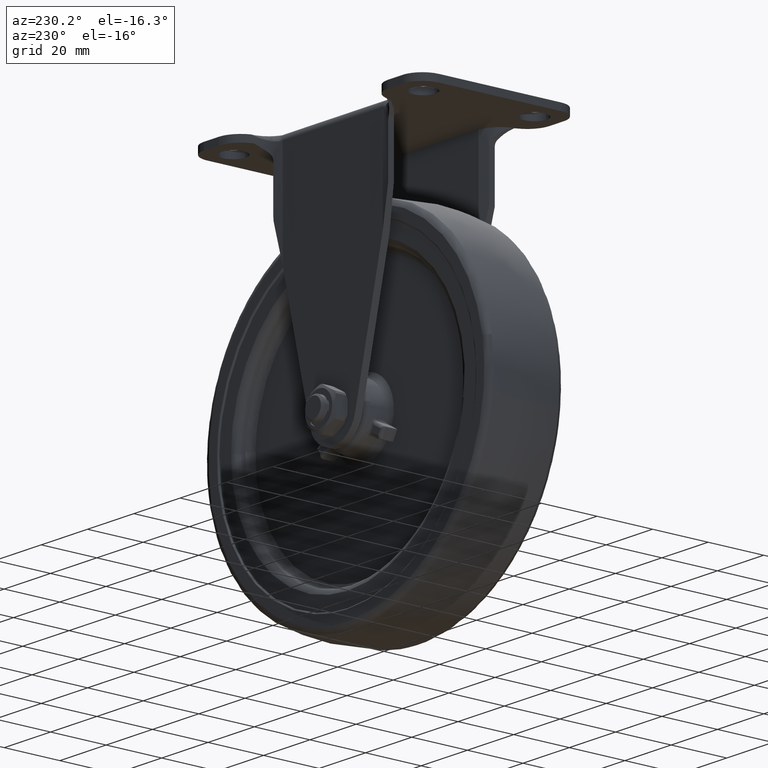
[diagram: clean part render]
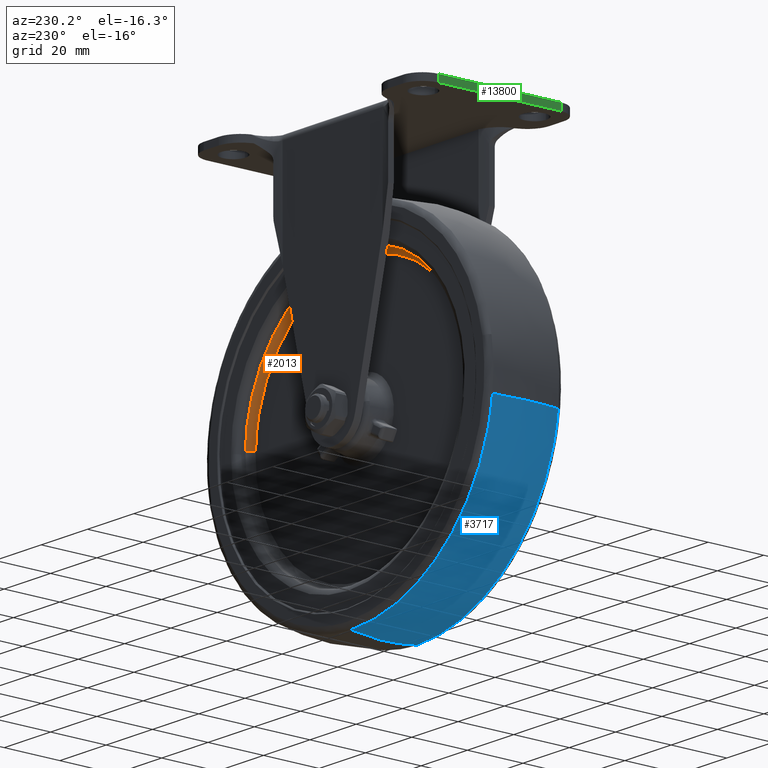
[diagram: same view with three faces highlighted in distinct colors, each labeled with its STEP entity id]
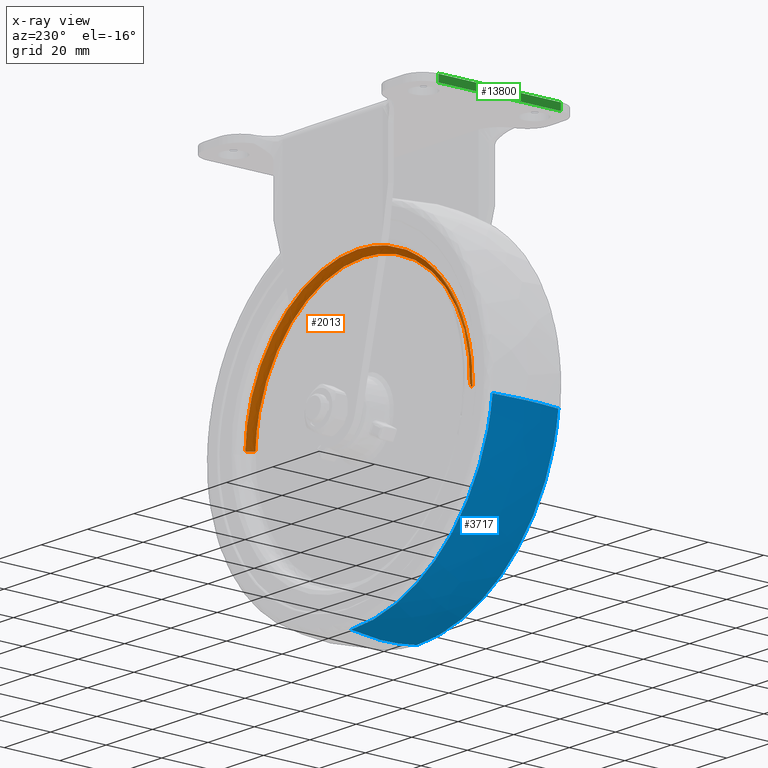
[diagram: x-ray of the same camera — body ghosted, the three highlighted faces saturated]
A machine part, auxiliary view with three faces highlighted in distinct colors.
The next image is the same camera in x-ray (body ghosted, the three faces saturated) — at least one of them is partly hidden behind the body in this view.
Their STEP definitions:

[orange] entity #2013 — the highlighted face is a freeform B-spline surface patch.
#70=CARTESIAN_POINT('',(-15.515367392135820,9.499999999514031,-41.065084761805139));
#71=VERTEX_POINT('',#70);
#72=CARTESIAN_POINT('',(9.484683180239662,9.499999996274280,-82.281190370982941));
#73=VERTEX_POINT('',#72);
#74=CARTESIAN_POINT('',(-15.515367392135818,9.499999999514031,-41.065084761805139));
#75=CARTESIAN_POINT('',(8.786683125110823,9.499999998462274,-54.514498406477614));
#76=CARTESIAN_POINT('',(9.484683180239662,9.499999996274280,-82.281190370982941));
#84=(BOUNDED_CURVE()B_SPLINE_CURVE(2,(#74,#75,#76),.UNSPECIFIED.,.F.,.U.)B_SPLINE_CURVE_WITH_KNOTS((3,3),(0.082484200464567,0.245579891769698),.UNSPECIFIED.)CURVE()GEOMETRIC_REPRESENTATION_ITEM()RATIONAL_B_SPLINE_CURVE((0.870495207989190,0.805504370457145,0.989826157681328))REPRESENTATION_ITEM(''));
#85=EDGE_CURVE('',#71,#73,#84,.T.);
#156=CARTESIAN_POINT('',(-74.757954433045185,9.500000000000950,-50.733878856901072));
#157=VERTEX_POINT('',#156);
#163=CARTESIAN_POINT('',(-87.484683180239671,9.499999996274280,-84.718809629017045));
#164=VERTEX_POINT('',#163);
#165=CARTESIAN_POINT('',(-87.484683180239671,9.499999996274280,-84.718809629017045));
#166=CARTESIAN_POINT('',(-87.499999999999986,9.500000000000000,-84.109501057999069));
#167=CARTESIAN_POINT('',(-87.500000000000000,9.500000000000000,-83.500000000000000));
#168=CARTESIAN_POINT('',(-87.500000000000000,9.499999999999998,-64.639384570472657));
#169=CARTESIAN_POINT('',(-74.757954433045185,9.500000000000950,-50.733878856901079));
#177=(BOUNDED_CURVE()B_SPLINE_CURVE(2,(#165,#166,#167,#168,#169),.UNSPECIFIED.,.F.,.U.)B_SPLINE_CURVE_WITH_KNOTS((3,2,3),(0.745579891769698,0.750000000000000,0.868415192508486),.UNSPECIFIED.)CURVE()GEOMETRIC_REPRESENTATION_ITEM()RATIONAL_B_SPLINE_CURVE((0.989826157681329,0.994821521091692,1.0,0.861267972439100,0.853959782883932))REPRESENTATION_ITEM(''));
#178=EDGE_CURVE('',#164,#157,#177,.T.);
#227=CARTESIAN_POINT('',(-39.0,9.500000000000000,-35.0));
#228=VERTEX_POINT('',#227);
#229=CARTESIAN_POINT('',(-39.0,9.500000000000000,-35.0));
#230=CARTESIAN_POINT('',(-26.474506590807646,9.500000000000000,-34.999999999999993));
#231=CARTESIAN_POINT('',(-15.515367392135818,9.499999999514031,-41.065084761805139));
#239=(BOUNDED_CURVE()B_SPLINE_CURVE(2,(#229,#230,#231),.UNSPECIFIED.,.F.,.U.)B_SPLINE_CURVE_WITH_KNOTS((3,3),(0.0,0.082484200464567),.UNSPECIFIED.)CURVE()GEOMETRIC_REPRESENTATION_ITEM()RATIONAL_B_SPLINE_CURVE((1.0,0.903363748098715,0.870495207989190))REPRESENTATION_ITEM(''));
#240=EDGE_CURVE('',#228,#71,#239,.T.);
#242=CARTESIAN_POINT('',(-74.757954433045185,9.500000000000950,-50.733878856901079));
#243=CARTESIAN_POINT('',(-60.340513926447827,9.499999999999998,-35.0));
#244=CARTESIAN_POINT('',(-39.0,9.500000000000000,-35.0));
#252=(BOUNDED_CURVE()B_SPLINE_CURVE(2,(#242,#243,#244),.UNSPECIFIED.,.F.,.U.)B_SPLINE_CURVE_WITH_KNOTS((3,3),(0.868415192508486,1.0),.UNSPECIFIED.)CURVE()GEOMETRIC_REPRESENTATION_ITEM()RATIONAL_B_SPLINE_CURVE((0.853959782883932,0.845838808747448,1.0))REPRESENTATION_ITEM(''));
#253=EDGE_CURVE('',#157,#228,#252,.T.);
#1924=CARTESIAN_POINT('',(-85.345909060198551,7.504867483468725,-84.665045051803844));
#1925=CARTESIAN_POINT('',(-86.510954112002395,7.504867483468724,-38.319135991605286));
#1926=CARTESIAN_POINT('',(-40.165045051803844,7.504867483468725,-37.154090939801442));
#1927=CARTESIAN_POINT('',(6.180864008394709,7.504867483468724,-35.989045887997591));
#1928=CARTESIAN_POINT('',(7.345909060198564,7.504867483468725,-82.334954948196128));
#1929=CARTESIAN_POINT('',(-87.639305887844969,7.344519879643304,-84.722696539929842));
#1930=CARTESIAN_POINT('',(-88.862002427774783,7.344519879643302,-36.083390652084873));
#1931=CARTESIAN_POINT('',(-40.222696539929835,7.344519879643304,-34.860694112155031));
#1932=CARTESIAN_POINT('',(8.416609347915134,7.344519879643302,-33.637997572225188));
#1933=CARTESIAN_POINT('',(9.639305887844971,7.344519879643304,-82.277303460070172));
#1934=CARTESIAN_POINT('',(-87.479869397419932,9.638701214955050,-84.718688619964226));
#1935=CARTESIAN_POINT('',(-88.698558017384144,9.638701214955049,-36.238819222544279));
#1936=CARTESIAN_POINT('',(-40.218688619964226,9.638701214955050,-35.020130602580046));
#1937=CARTESIAN_POINT('',(8.261180777455710,9.638701214955049,-33.801441982615842));
#1938=CARTESIAN_POINT('',(9.479869397419941,9.638701214955050,-82.281311380035760));
#1946=(BOUNDED_SURFACE()B_SPLINE_SURFACE(2,2,((#1924,#1929,#1934),(#1925,#1930,#1935),(#1926,#1931,#1936),(#1927,#1932,#1937),(#1928,#1933,#1938)),.UNSPECIFIED.,.F.,.F.,.U.)B_SPLINE_SURFACE_WITH_KNOTS((3,2,3),(3,3),(0.0,80.349452844240020,160.698905688480010),(0.0,3.644742441571487),.UNSPECIFIED.)GEOMETRIC_REPRESENTATION_ITEM()RATIONAL_B_SPLINE_SURFACE(((0.910893232745249,0.599412779122941,0.915966635411388),(0.644098781811102,0.423848840847706,0.647686219240018),(0.910893232745249,0.599412779122941,0.915966635411388),(0.644098781811102,0.423848840847706,0.647686219240018),(0.910893232745249,0.599412779122941,0.915966635411388)))REPRESENTATION_ITEM('')SURFACE());
#1947=ORIENTED_EDGE('',*,*,#253,.T.);
#1948=ORIENTED_EDGE('',*,*,#240,.T.);
#1949=ORIENTED_EDGE('',*,*,#85,.T.);
#1950=CARTESIAN_POINT('',(7.485314805732360,7.500000000000002,-82.331450561774346));
#1951=VERTEX_POINT('',#1950);
#1952=CARTESIAN_POINT('',(7.485314805732360,7.500000000000002,-82.331450561774346));
#1953=CARTESIAN_POINT('',(9.484683172790950,7.500000008120827,-82.281190371185389));
#1954=CARTESIAN_POINT('',(9.484683180239662,9.499999996274280,-82.281190370982941));
#1962=(BOUNDED_CURVE()B_SPLINE_CURVE(2,(#1952,#1953,#1954),.UNSPECIFIED.,.F.,.U.)B_SPLINE_CURVE_WITH_KNOTS((3,3),(-1.723441277804209,-0.263586882783813),.UNSPECIFIED.)CURVE()GEOMETRIC_REPRESENTATION_ITEM()RATIONAL_B_SPLINE_CURVE((0.883897565665249,0.626638728666967,0.888510407679162))REPRESENTATION_ITEM(''));
#1963=EDGE_CURVE('',#1951,#73,#1962,.T.);
#1964=ORIENTED_EDGE('',*,*,#1963,.F.);
#1965=CARTESIAN_POINT('',(-39.0,7.500000000000000,-37.000000000000007));
#1966=VERTEX_POINT('',#1965);
#1967=CARTESIAN_POINT('',(-39.0,7.500000000000000,-37.000000000000007));
#1968=CARTESIAN_POINT('',(6.345771242383709,7.499999999999999,-37.000000000000007));
#1969=CARTESIAN_POINT('',(7.485314805732360,7.500000000000002,-82.331450561774346));
#1977=(BOUNDED_CURVE()B_SPLINE_CURVE(2,(#1967,#1968,#1969),.UNSPECIFIED.,.F.,.U.)B_SPLINE_CURVE_WITH_KNOTS((3,3),(0.0,0.245579891769744),.UNSPECIFIED.)CURVE()GEOMETRIC_REPRESENTATION_ITEM()RATIONAL_B_SPLINE_CURVE((1.0,0.712285260094802,0.989826157681432))REPRESENTATION_ITEM(''));
#1978=EDGE_CURVE('',#1966,#1951,#1977,.T.);
#1979=ORIENTED_EDGE('',*,*,#1978,.F.);
#1980=CARTESIAN_POINT('',(-85.485314805732344,7.500000000000000,-84.668549438225654));
#1981=VERTEX_POINT('',#1980);
#1982=CARTESIAN_POINT('',(-85.485314805732344,7.500000000000000,-84.668549438225654));
#1983=CARTESIAN_POINT('',(-85.499999999999986,7.499999999999999,-84.084366993745590));
#1984=CARTESIAN_POINT('',(-85.499999999999986,7.500000000000000,-83.500000000000000));
#1985=CARTESIAN_POINT('',(-85.499999999999986,7.500000000000000,-37.000000000000007));
#1986=CARTESIAN_POINT('',(-39.0,7.500000000000000,-37.000000000000007));
#1994=(BOUNDED_CURVE()B_SPLINE_CURVE(2,(#1982,#1983,#1984,#1985,#1986),.UNSPECIFIED.,.F.,.U.)B_SPLINE_CURVE_WITH_KNOTS((3,2,3),(0.745579891769744,0.750000000000000,1.0),.UNSPECIFIED.)CURVE()GEOMETRIC_REPRESENTATION_ITEM()RATIONAL_B_SPLINE_CURVE((0.989826157681433,0.994821521091746,1.0,0.707106781186547,1.0))REPRESENTATION_ITEM(''));
#1995=EDGE_CURVE('',#1981,#1966,#1994,.T.);
#1996=ORIENTED_EDGE('',*,*,#1995,.F.);
#1997=CARTESIAN_POINT('',(-85.485314805732344,7.500000000000000,-84.668549438225654));
#1998=CARTESIAN_POINT('',(-87.484683172790938,7.500000008120795,-84.718809628814640));
#1999=CARTESIAN_POINT('',(-87.484683180239671,9.499999996274280,-84.718809629017045));
#2007=(BOUNDED_CURVE()B_SPLINE_CURVE(2,(#1997,#1998,#1999),.UNSPECIFIED.,.F.,.U.)B_SPLINE_CURVE_WITH_KNOTS((3,3),(-1.723441277804225,-0.263586882783814),.UNSPECIFIED.)CURVE()GEOMETRIC_REPRESENTATION_ITEM()RATIONAL_B_SPLINE_CURVE((0.883897565665255,0.626638728666964,0.888510407679161))REPRESENTATION_ITEM(''));
#2008=EDGE_CURVE('',#1981,#164,#2007,.T.);
#2009=ORIENTED_EDGE('',*,*,#2008,.T.);
#2010=ORIENTED_EDGE('',*,*,#178,.T.);
#2011=EDGE_LOOP('',(#1947,#1948,#1949,#1964,#1979,#1996,#2009,#2010));
#2012=FACE_OUTER_BOUND('',#2011,.T.);
#2013=ADVANCED_FACE('',(#2012),#1946,.F.);

[blue] entity #3717 — the highlighted face is a freeform B-spline surface patch.
#2491=CARTESIAN_POINT('',(-39.0,11.838175978071250,-144.991721166445810));
#2492=VERTEX_POINT('',#2491);
#2506=CARTESIAN_POINT('',(-100.080432211167800,11.838235289702480,-90.600093047536717));
#2507=VERTEX_POINT('',#2506);
#2508=CARTESIAN_POINT('',(-39.0,11.838175978071250,-144.991721166445810));
#2509=CARTESIAN_POINT('',(-93.757858256096398,11.838205633886867,-144.991716063439010));
#2510=CARTESIAN_POINT('',(-100.080432211167760,11.838235289702487,-90.600093047536717));
#2518=(BOUNDED_CURVE()B_SPLINE_CURVE(2,(#2508,#2509,#2510),.UNSPECIFIED.,.F.,.U.)B_SPLINE_CURVE_WITH_KNOTS((3,3),(0.500000000000000,0.729999999844037),.UNSPECIFIED.)CURVE()GEOMETRIC_REPRESENTATION_ITEM()RATIONAL_B_SPLINE_CURVE((1.0,0.730538238874346,0.956886117883687))REPRESENTATION_ITEM(''));
#2519=EDGE_CURVE('',#2492,#2507,#2518,.T.);
#2702=CARTESIAN_POINT('',(-39.0,-11.838222375909440,-144.991713205125990));
#2703=VERTEX_POINT('',#2702);
#2809=CARTESIAN_POINT('',(-100.080432211213310,-11.838235289660441,-90.600093047207650));
#2810=VERTEX_POINT('',#2809);
#2826=CARTESIAN_POINT('',(-39.0,-11.838222375909440,-144.991713205125990));
#2827=CARTESIAN_POINT('',(-93.757858256675661,-11.838228832784941,-144.991712082944080));
#2828=CARTESIAN_POINT('',(-100.080432211213260,-11.838235289660448,-90.600093047207650));
#2836=(BOUNDED_CURVE()B_SPLINE_CURVE(2,(#2826,#2827,#2828),.UNSPECIFIED.,.F.,.U.)B_SPLINE_CURVE_WITH_KNOTS((3,3),(0.500000000000000,0.729999999845862),.UNSPECIFIED.)CURVE()GEOMETRIC_REPRESENTATION_ITEM()RATIONAL_B_SPLINE_CURVE((1.0,0.730538238872207,0.956886117887280))REPRESENTATION_ITEM(''));
#2837=EDGE_CURVE('',#2703,#2810,#2836,.T.);
#3649=CARTESIAN_POINT('',(-100.080432211167760,11.838235289702480,-90.600093047536717));
#3650=CARTESIAN_POINT('',(-101.081977424067620,5.962056759123049,-90.716514332942097));
#3651=CARTESIAN_POINT('',(-101.081977424067630,-1.396051E-014,-90.716514332942111));
#3652=CARTESIAN_POINT('',(-101.081977424067630,-5.962056759080115,-90.716514332942111));
#3653=CARTESIAN_POINT('',(-100.080432211213260,-11.838235289660449,-90.600093047207650));
#3661=(BOUNDED_CURVE()B_SPLINE_CURVE(2,(#3649,#3650,#3651,#3652,#3653),.UNSPECIFIED.,.F.,.U.)B_SPLINE_CURVE_WITH_KNOTS((3,2,3),(0.438276975740213,0.500000000000000,0.561723024259356),.UNSPECIFIED.)CURVE()GEOMETRIC_REPRESENTATION_ITEM()RATIONAL_B_SPLINE_CURVE((0.903877599681304,0.926649235212819,0.956886118190660,0.926649235213030,0.903877599681622))REPRESENTATION_ITEM(''));
#3662=EDGE_CURVE('',#2507,#2810,#3661,.T.);
#3668=CARTESIAN_POINT('',(-39.0,11.838175978071249,-144.991721166445760));
#3669=CARTESIAN_POINT('',(-39.0,5.962026453883440,-146.0));
#3670=CARTESIAN_POINT('',(-39.0,-1.396051E-014,-146.0));
#3671=CARTESIAN_POINT('',(-39.0,-5.962050162592778,-146.000000000000090));
#3672=CARTESIAN_POINT('',(-39.0,-11.838222375909439,-144.991713205125930));
#3680=(BOUNDED_CURVE()B_SPLINE_CURVE(2,(#3668,#3669,#3670,#3671,#3672),.UNSPECIFIED.,.F.,.U.)B_SPLINE_CURVE_WITH_KNOTS((3,2,3),(0.438277279565559,0.500000000000000,0.561722958126244),.UNSPECIFIED.)CURVE()GEOMETRIC_REPRESENTATION_ITEM()RATIONAL_B_SPLINE_CURVE((0.944603340649084,0.968400906267701,1.0,0.968400784580817,0.944603157362195))REPRESENTATION_ITEM(''));
#3681=EDGE_CURVE('',#2492,#2703,#3680,.T.);
#3688=CARTESIAN_POINT('',(-38.999999999999993,13.043008485443154,-144.774122529107330));
#3689=CARTESIAN_POINT('',(-39.000000000000007,6.579112714544596,-146.0));
#3690=CARTESIAN_POINT('',(-39.0,-1.396051E-014,-146.0));
#3691=CARTESIAN_POINT('',(-39.0,-6.579115706671011,-146.000000000000030));
#3692=CARTESIAN_POINT('',(-39.0,-13.043014313414373,-144.774121423832670));
#3693=CARTESIAN_POINT('',(-93.564097587623266,13.043008485443147,-144.774122529107300));
#3694=CARTESIAN_POINT('',(-94.655731301683986,6.579112714544597,-146.0));
#3695=CARTESIAN_POINT('',(-94.655731301684000,-1.396051E-014,-146.000000000000060));
#3696=CARTESIAN_POINT('',(-94.655731301684000,-6.579115706671012,-146.000000000000090));
#3697=CARTESIAN_POINT('',(-93.564096603385380,-13.043014313414377,-144.774121423832640));
#3698=CARTESIAN_POINT('',(-99.864299064505460,13.043008485443142,-90.574969335516059));
#3699=CARTESIAN_POINT('',(-101.081977424067630,6.579112714544596,-90.716514332942126));
#3700=CARTESIAN_POINT('',(-101.081977424067630,-1.396051E-014,-90.716514332942126));
#3701=CARTESIAN_POINT('',(-101.081977424067630,-6.579115706671011,-90.716514332942126));
#3702=CARTESIAN_POINT('',(-99.864297966623255,-13.043014313414375,-90.574969207896373));
#3710=(BOUNDED_SURFACE()B_SPLINE_SURFACE(2,2,((#3688,#3693,#3698),(#3689,#3694,#3699),(#3690,#3695,#3700),(#3691,#3696,#3701),(#3692,#3697,#3702)),.UNSPECIFIED.,.F.,.F.,.U.)B_SPLINE_SURFACE_WITH_KNOTS((3,2,3),(3,3),(0.0,13.512654823574810,27.025315579002712),(0.0,95.164622271472339),.UNSPECIFIED.)GEOMETRIC_REPRESENTATION_ITEM()RATIONAL_B_SPLINE_SURFACE(((0.939926196505799,0.686652028095463,0.899402329560145),(0.965243985300436,0.705147640929064,0.923628570201016),(1.0,0.730538238691624,0.956886118190660),(0.965243970043066,0.705147629782972,0.923628555601451),(0.939926174277540,0.686652011856870,0.899402308290233)))REPRESENTATION_ITEM('')SURFACE());
#3711=ORIENTED_EDGE('',*,*,#2519,.F.);
#3712=ORIENTED_EDGE('',*,*,#3681,.T.);
#3713=ORIENTED_EDGE('',*,*,#2837,.T.);
#3714=ORIENTED_EDGE('',*,*,#3662,.F.);
#3715=EDGE_LOOP('',(#3711,#3712,#3713,#3714));
#3716=FACE_OUTER_BOUND('',#3715,.T.);
#3717=ADVANCED_FACE('',(#3716),#3710,.T.);

[green] entity #13800 — the highlighted face is a freeform B-spline surface patch.
#13017=CARTESIAN_POINT('',(-50.0,-21.999997556539199,83.0));
#13018=VERTEX_POINT('',#13017);
#13034=CARTESIAN_POINT('',(-50.0,22.0,83.0));
#13035=VERTEX_POINT('',#13034);
#13036=CARTESIAN_POINT('',(-50.0,-21.999997556539199,83.0));
#13037=CARTESIAN_POINT('',(-50.0,22.0,83.0));
#13038=QUASI_UNIFORM_CURVE('',1,(#13036,#13037),.UNSPECIFIED.,.F.,.U.);
#13039=EDGE_CURVE('',#13018,#13035,#13038,.T.);
#13354=CARTESIAN_POINT('',(-50.0,22.0,85.500000000000000));
#13355=VERTEX_POINT('',#13354);
#13369=CARTESIAN_POINT('',(-50.0,-21.999997556539199,85.500000000000000));
#13370=VERTEX_POINT('',#13369);
#13371=CARTESIAN_POINT('',(-50.0,-21.999997556539199,85.500000000000000));
#13372=CARTESIAN_POINT('',(-50.0,22.0,85.500000000000000));
#13373=QUASI_UNIFORM_CURVE('',1,(#13371,#13372),.UNSPECIFIED.,.F.,.U.);
#13374=EDGE_CURVE('',#13370,#13355,#13373,.T.);
#13775=CARTESIAN_POINT('',(-50.0,22.0,83.0));
#13776=CARTESIAN_POINT('',(-50.0,22.0,85.500000000000000));
#13777=QUASI_UNIFORM_CURVE('',1,(#13775,#13776),.UNSPECIFIED.,.F.,.U.);
#13778=EDGE_CURVE('',#13035,#13355,#13777,.T.);
#13785=CARTESIAN_POINT('',(-50.0,-24.197798175288789,85.624874995154514));
#13786=CARTESIAN_POINT('',(-50.0,-24.197798175288789,82.875124937790261));
#13787=CARTESIAN_POINT('',(-50.0,24.197801012140221,85.624874995154514));
#13788=CARTESIAN_POINT('',(-50.0,24.197801012140221,82.875124937790261));
#13789=B_SPLINE_SURFACE_WITH_KNOTS('',1,1,((#13785,#13787),(#13786,#13788)),.UNSPECIFIED.,.F.,.F.,.U.,(2,2),(2,2),(0.0,2.749750057364253),(0.0,48.395599187428999),.UNSPECIFIED.);
#13790=ORIENTED_EDGE('',*,*,#13039,.F.);
#13791=CARTESIAN_POINT('',(-50.0,-21.999997556539199,83.0));
#13792=CARTESIAN_POINT('',(-50.0,-21.999997556539199,85.500000000000000));
#13793=QUASI_UNIFORM_CURVE('',1,(#13791,#13792),.UNSPECIFIED.,.F.,.U.);
#13794=EDGE_CURVE('',#13018,#13370,#13793,.T.);
#13795=ORIENTED_EDGE('',*,*,#13794,.T.);
#13796=ORIENTED_EDGE('',*,*,#13374,.T.);
#13797=ORIENTED_EDGE('',*,*,#13778,.F.);
#13798=EDGE_LOOP('',(#13790,#13795,#13796,#13797));
#13799=FACE_OUTER_BOUND('',#13798,.T.);
#13800=ADVANCED_FACE('',(#13799),#13789,.F.);